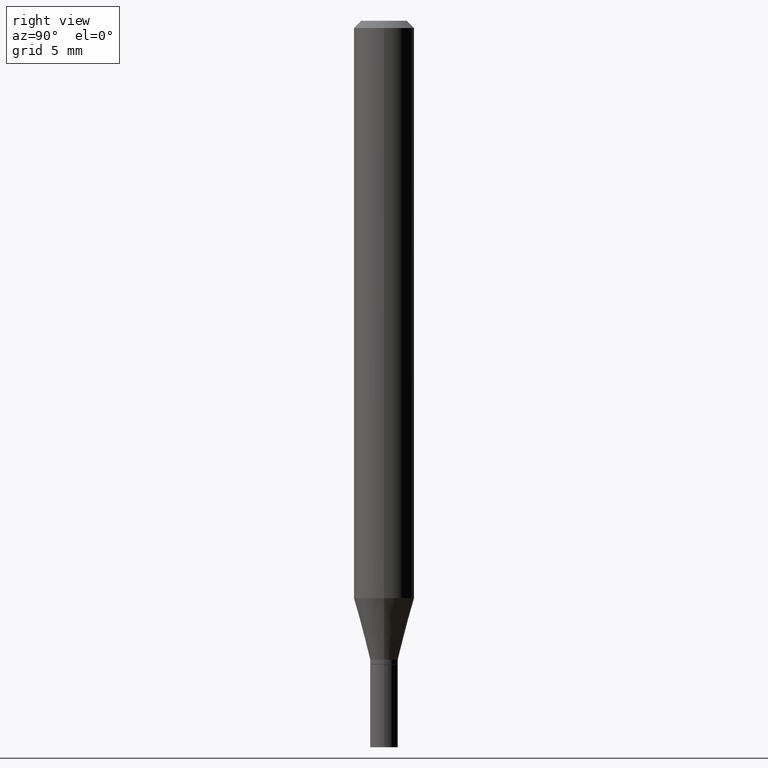
[diagram: clean part render]
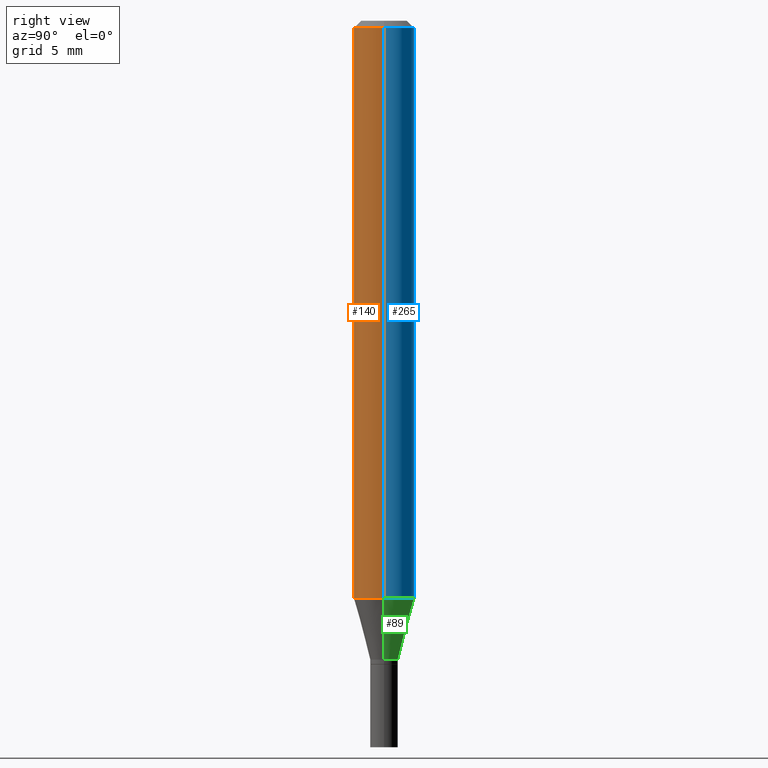
[diagram: same view with three faces highlighted in distinct colors, each labeled with its STEP entity id]
A machine part, right view with three faces highlighted in distinct colors.
Their STEP definitions:

[orange] entity #140 — the highlighted cylindrical surface (edge-blend (fillet) strip) has radius 1.5875 mm, axis along (-0, 0, 1).
#1 = CYLINDRICAL_SURFACE ( 'NONE', #241, 0.06250000000000000000 ) ;
#2 = DIRECTION ( 'NONE',  ( -2.445468806185136877E-29, 3.491481338843145188E-15, 1.000000000000000000 ) ) ;
#17 = CIRCLE ( 'NONE', #275, 0.06250000000000000000 ) ;
#24 = CARTESIAN_POINT ( 'NONE',  ( 0.06250000000000000000, -4.364351673553916694E-16, 3.047610484872459871E-30 ) ) ;
#36 = EDGE_CURVE ( 'NONE', #287, #458, #17, .T. ) ;
#45 = EDGE_CURVE ( 'NONE', #231, #287, #211, .T. ) ;
#57 = VECTOR ( 'NONE', #2, 39.37007874015748143 ) ;
#68 = CIRCLE ( 'NONE', #142, 0.06250000000000000000 ) ;
#81 = EDGE_CURVE ( 'NONE', #231, #374, #68, .T. ) ;
#123 = ORIENTED_EDGE ( 'NONE', *, *, #81, .T. ) ;
#140 = ADVANCED_FACE ( 'NONE', ( #462 ), #1, .T. ) ;
#142 = AXIS2_PLACEMENT_3D ( 'NONE', #143, #273, #430 ) ;
#143 = CARTESIAN_POINT ( 'NONE',  ( 2.915268485035931806E-29, -4.162230770425907235E-15, -1.192110272542658223 ) ) ;
#169 = EDGE_CURVE ( 'NONE', #374, #458, #198, .T. ) ;
#178 = DIRECTION ( 'NONE',  ( -2.445468806185136597E-29, 3.491481338843145583E-15, 1.000000000000000000 ) ) ;
#185 = CARTESIAN_POINT ( 'NONE',  ( 0.06250000000000000000, -4.888073874380388472E-16, -0.01499999999999999944 ) ) ;
#198 = LINE ( 'NONE', #24, #318 ) ;
#207 = CARTESIAN_POINT ( 'NONE',  ( 3.668203209277705088E-31, -5.237222008264718399E-17, -0.01499999999999999944 ) ) ;
#211 = LINE ( 'NONE', #349, #57 ) ;
#231 = VERTEX_POINT ( 'NONE', #428 ) ;
#241 = AXIS2_PLACEMENT_3D ( 'NONE', #342, #383, #270 ) ;
#268 = ORIENTED_EDGE ( 'NONE', *, *, #169, .T. ) ;
#270 = DIRECTION ( 'NONE',  ( 1.000000000000000000, -6.982962677686266711E-15, 4.876176775795935793E-29 ) ) ;
#273 = DIRECTION ( 'NONE',  ( -2.445468806185136597E-29, 3.491481338843145583E-15, 1.000000000000000000 ) ) ;
#275 = AXIS2_PLACEMENT_3D ( 'NONE', #207, #178, #379 ) ;
#279 = CARTESIAN_POINT ( 'NONE',  ( -0.06250000000000000000, -1.663212285404214738E-15, -0.01499999999999999944 ) ) ;
#287 = VERTEX_POINT ( 'NONE', #279 ) ;
#318 = VECTOR ( 'NONE', #332, 39.37007874015748143 ) ;
#332 = DIRECTION ( 'NONE',  ( -2.445468806185136877E-29, 3.491481338843145188E-15, 1.000000000000000000 ) ) ;
#340 = ORIENTED_EDGE ( 'NONE', *, *, #45, .F. ) ;
#342 = CARTESIAN_POINT ( 'NONE',  ( 0.000000000000000000, 0.000000000000000000, 0.000000000000000000 ) ) ;
#349 = CARTESIAN_POINT ( 'NONE',  ( -0.06250000000000000000, 4.440892098500626162E-16, -3.074334431409316114E-30 ) ) ;
#362 = ORIENTED_EDGE ( 'NONE', *, *, #36, .F. ) ;
#364 = CARTESIAN_POINT ( 'NONE',  ( 0.06250000000000000000, -4.598665937781298116E-15, -1.192110272542658223 ) ) ;
#374 = VERTEX_POINT ( 'NONE', #364 ) ;
#379 = DIRECTION ( 'NONE',  ( 1.000000000000000000, -6.982962677686266711E-15, 0.000000000000000000 ) ) ;
#383 = DIRECTION ( 'NONE',  ( -2.445468806185136597E-29, 3.491481338843145583E-15, 1.000000000000000000 ) ) ;
#428 = CARTESIAN_POINT ( 'NONE',  ( -0.06250000000000000000, -3.718141560575843830E-15, -1.192110272542658223 ) ) ;
#430 = DIRECTION ( 'NONE',  ( 1.000000000000000000, -6.982962677686270655E-15, 0.000000000000000000 ) ) ;
#451 = EDGE_LOOP ( 'NONE', ( #340, #123, #268, #362 ) ) ;
#458 = VERTEX_POINT ( 'NONE', #185 ) ;
#462 = FACE_OUTER_BOUND ( 'NONE', #451, .T. ) ;

[blue] entity #265 — the highlighted cylindrical surface (edge-blend (fillet) strip) has radius 1.5875 mm, axis along (-0, 0, 1).
#2 = DIRECTION ( 'NONE',  ( -2.445468806185136877E-29, 3.491481338843145188E-15, 1.000000000000000000 ) ) ;
#11 = DIRECTION ( 'NONE',  ( 1.000000000000000000, -6.982962677686270655E-15, 0.000000000000000000 ) ) ;
#21 = DIRECTION ( 'NONE',  ( -2.445468806185136597E-29, 3.491481338843145583E-15, 1.000000000000000000 ) ) ;
#24 = CARTESIAN_POINT ( 'NONE',  ( 0.06250000000000000000, -4.364351673553916694E-16, 3.047610484872459871E-30 ) ) ;
#45 = EDGE_CURVE ( 'NONE', #231, #287, #211, .T. ) ;
#51 = DIRECTION ( 'NONE',  ( -2.445468806185136597E-29, 3.491481338843145583E-15, 1.000000000000000000 ) ) ;
#57 = VECTOR ( 'NONE', #2, 39.37007874015748143 ) ;
#58 = FACE_OUTER_BOUND ( 'NONE', #100, .T. ) ;
#80 = CYLINDRICAL_SURFACE ( 'NONE', #182, 0.06250000000000000000 ) ;
#91 = ORIENTED_EDGE ( 'NONE', *, *, #169, .F. ) ;
#100 = EDGE_LOOP ( 'NONE', ( #424, #163, #135, #91 ) ) ;
#133 = CIRCLE ( 'NONE', #294, 0.06250000000000000000 ) ;
#135 = ORIENTED_EDGE ( 'NONE', *, *, #315, .F. ) ;
#163 = ORIENTED_EDGE ( 'NONE', *, *, #45, .T. ) ;
#169 = EDGE_CURVE ( 'NONE', #374, #458, #198, .T. ) ;
#182 = AXIS2_PLACEMENT_3D ( 'NONE', #324, #51, #248 ) ;
#183 = CARTESIAN_POINT ( 'NONE',  ( 3.668203209277705088E-31, -5.237222008264718399E-17, -0.01499999999999999944 ) ) ;
#185 = CARTESIAN_POINT ( 'NONE',  ( 0.06250000000000000000, -4.888073874380388472E-16, -0.01499999999999999944 ) ) ;
#198 = LINE ( 'NONE', #24, #318 ) ;
#211 = LINE ( 'NONE', #349, #57 ) ;
#231 = VERTEX_POINT ( 'NONE', #428 ) ;
#248 = DIRECTION ( 'NONE',  ( 1.000000000000000000, -6.982962677686266711E-15, 4.876176775795935793E-29 ) ) ;
#265 = ADVANCED_FACE ( 'NONE', ( #58 ), #80, .T. ) ;
#279 = CARTESIAN_POINT ( 'NONE',  ( -0.06250000000000000000, -1.663212285404214738E-15, -0.01499999999999999944 ) ) ;
#286 = CIRCLE ( 'NONE', #391, 0.06250000000000000000 ) ;
#287 = VERTEX_POINT ( 'NONE', #279 ) ;
#294 = AXIS2_PLACEMENT_3D ( 'NONE', #183, #21, #439 ) ;
#315 = EDGE_CURVE ( 'NONE', #458, #287, #133, .T. ) ;
#318 = VECTOR ( 'NONE', #332, 39.37007874015748143 ) ;
#320 = CARTESIAN_POINT ( 'NONE',  ( 2.915268485035931806E-29, -4.162230770425907235E-15, -1.192110272542658223 ) ) ;
#324 = CARTESIAN_POINT ( 'NONE',  ( 0.000000000000000000, 0.000000000000000000, 0.000000000000000000 ) ) ;
#332 = DIRECTION ( 'NONE',  ( -2.445468806185136877E-29, 3.491481338843145188E-15, 1.000000000000000000 ) ) ;
#349 = CARTESIAN_POINT ( 'NONE',  ( -0.06250000000000000000, 4.440892098500626162E-16, -3.074334431409316114E-30 ) ) ;
#364 = CARTESIAN_POINT ( 'NONE',  ( 0.06250000000000000000, -4.598665937781298116E-15, -1.192110272542658223 ) ) ;
#374 = VERTEX_POINT ( 'NONE', #364 ) ;
#391 = AXIS2_PLACEMENT_3D ( 'NONE', #320, #403, #11 ) ;
#403 = DIRECTION ( 'NONE',  ( -2.445468806185136597E-29, 3.491481338843145583E-15, 1.000000000000000000 ) ) ;
#405 = EDGE_CURVE ( 'NONE', #374, #231, #286, .T. ) ;
#424 = ORIENTED_EDGE ( 'NONE', *, *, #405, .T. ) ;
#428 = CARTESIAN_POINT ( 'NONE',  ( -0.06250000000000000000, -3.718141560575843830E-15, -1.192110272542658223 ) ) ;
#439 = DIRECTION ( 'NONE',  ( 1.000000000000000000, -6.982962677686266711E-15, 0.000000000000000000 ) ) ;
#458 = VERTEX_POINT ( 'NONE', #185 ) ;

[green] entity #89 — the highlighted conical surface has half-angle 15 deg.
#11 = DIRECTION ( 'NONE',  ( 1.000000000000000000, -6.982962677686270655E-15, 0.000000000000000000 ) ) ;
#27 = EDGE_CURVE ( 'NONE', #204, #231, #432, .T. ) ;
#71 = CARTESIAN_POINT ( 'NONE',  ( 3.225573355358195400E-29, -4.605263885934108641E-15, -1.318999999999999950 ) ) ;
#83 = DIRECTION ( 'NONE',  ( 1.000000000000000000, -6.982962677686265133E-15, 0.000000000000000000 ) ) ;
#89 = ADVANCED_FACE ( 'NONE', ( #106 ), #95, .T. ) ;
#95 = CONICAL_SURFACE ( 'NONE', #258, 0.02849999999999992817, 0.2617993877991498519 ) ;
#104 = EDGE_LOOP ( 'NONE', ( #343, #426, #464, #416 ) ) ;
#106 = FACE_OUTER_BOUND ( 'NONE', #104, .T. ) ;
#112 = CARTESIAN_POINT ( 'NONE',  ( 0.02849999999999992817, -4.804278322248167148E-15, -1.318999999999999950 ) ) ;
#137 = CARTESIAN_POINT ( 'NONE',  ( -0.02849999999999992817, -4.402759206242480303E-15, -1.318999999999999950 ) ) ;
#164 = AXIS2_PLACEMENT_3D ( 'NONE', #256, #447, #83 ) ;
#180 = DIRECTION ( 'NONE',  ( -2.445468806185136597E-29, 3.491481338843145583E-15, 1.000000000000000000 ) ) ;
#204 = VERTEX_POINT ( 'NONE', #452 ) ;
#215 = DIRECTION ( 'NONE',  ( 1.000000000000000000, -6.982962677686265133E-15, 0.000000000000000000 ) ) ;
#231 = VERTEX_POINT ( 'NONE', #428 ) ;
#256 = CARTESIAN_POINT ( 'NONE',  ( 3.225573355358195400E-29, -4.605263885934108641E-15, -1.318999999999999950 ) ) ;
#258 = AXIS2_PLACEMENT_3D ( 'NONE', #71, #180, #215 ) ;
#286 = CIRCLE ( 'NONE', #391, 0.06250000000000000000 ) ;
#289 = CARTESIAN_POINT ( 'NONE',  ( 0.02849999999999992817, -4.804278322248167148E-15, -1.318999999999999950 ) ) ;
#319 = VECTOR ( 'NONE', #445, 39.37007874015748854 ) ;
#320 = CARTESIAN_POINT ( 'NONE',  ( 2.915268485035931806E-29, -4.162230770425907235E-15, -1.192110272542658223 ) ) ;
#328 = EDGE_CURVE ( 'NONE', #376, #204, #354, .T. ) ;
#341 = VECTOR ( 'NONE', #423, 39.37007874015748854 ) ;
#343 = ORIENTED_EDGE ( 'NONE', *, *, #328, .T. ) ;
#354 = CIRCLE ( 'NONE', #164, 0.02849999999999992817 ) ;
#364 = CARTESIAN_POINT ( 'NONE',  ( 0.06250000000000000000, -4.598665937781298116E-15, -1.192110272542658223 ) ) ;
#374 = VERTEX_POINT ( 'NONE', #364 ) ;
#376 = VERTEX_POINT ( 'NONE', #112 ) ;
#391 = AXIS2_PLACEMENT_3D ( 'NONE', #320, #403, #11 ) ;
#403 = DIRECTION ( 'NONE',  ( -2.445468806185136597E-29, 3.491481338843145583E-15, 1.000000000000000000 ) ) ;
#405 = EDGE_CURVE ( 'NONE', #374, #231, #286, .T. ) ;
#416 = ORIENTED_EDGE ( 'NONE', *, *, #461, .F. ) ;
#423 = DIRECTION ( 'NONE',  ( -0.2588190451025211281, 5.211531920934547886E-15, 0.9659258262890679791 ) ) ;
#426 = ORIENTED_EDGE ( 'NONE', *, *, #27, .T. ) ;
#428 = CARTESIAN_POINT ( 'NONE',  ( -0.06250000000000000000, -3.718141560575843830E-15, -1.192110272542658223 ) ) ;
#432 = LINE ( 'NONE', #137, #341 ) ;
#445 = DIRECTION ( 'NONE',  ( 0.2588190451025211281, 1.565188264969622954E-15, 0.9659258262890679791 ) ) ;
#447 = DIRECTION ( 'NONE',  ( -2.445468806185136597E-29, 3.491481338843145583E-15, 1.000000000000000000 ) ) ;
#449 = LINE ( 'NONE', #289, #319 ) ;
#452 = CARTESIAN_POINT ( 'NONE',  ( -0.02849999999999992817, -4.060450383409162461E-15, -1.318999999999999950 ) ) ;
#461 = EDGE_CURVE ( 'NONE', #376, #374, #449, .T. ) ;
#464 = ORIENTED_EDGE ( 'NONE', *, *, #405, .F. ) ;